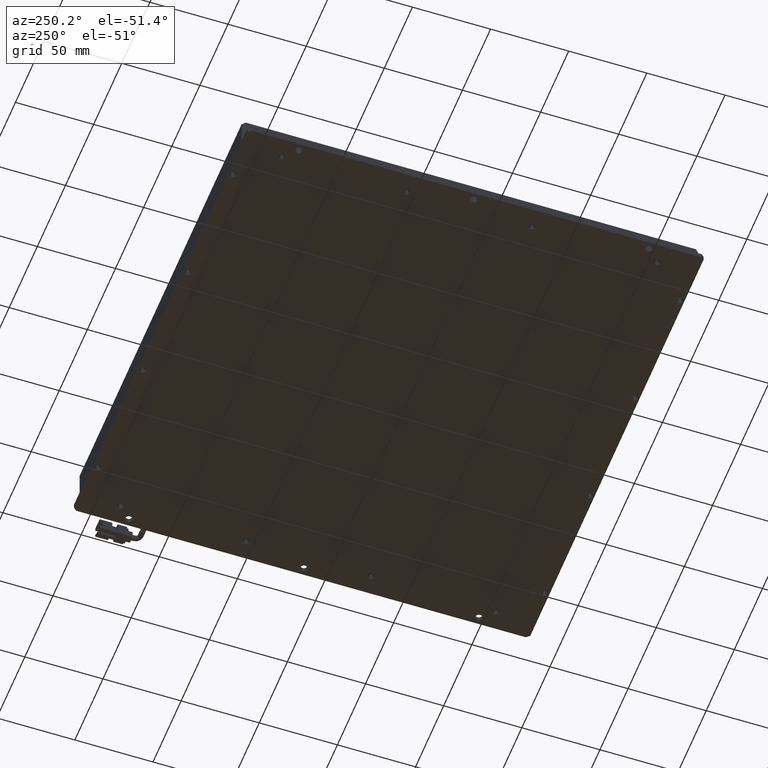
[diagram: clean part render]
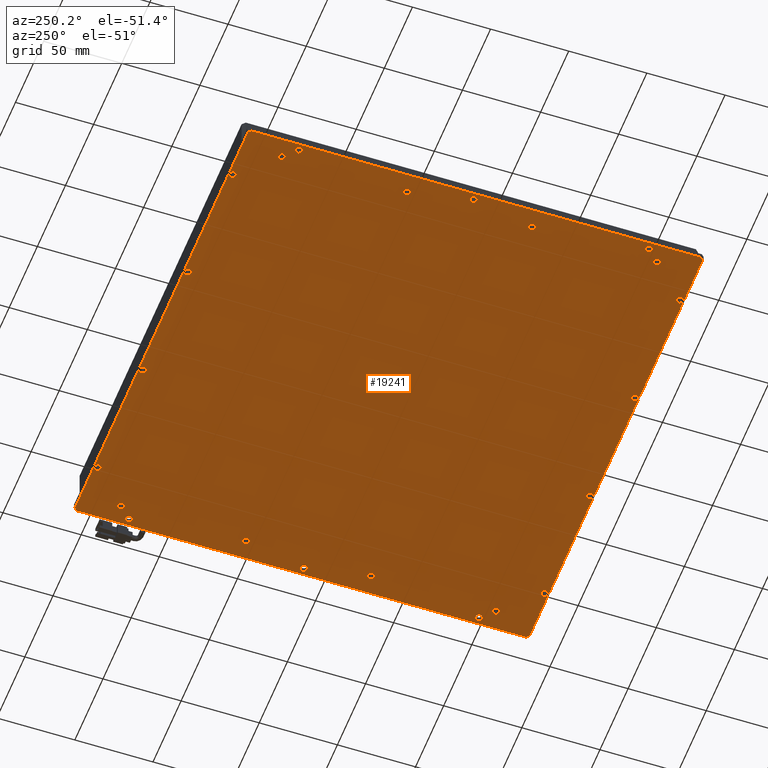
[diagram: same view with one face highlighted and labeled with its STEP entity id]
A machine part, auxiliary view. The second image highlights one B-rep face of the part: STEP entity #19241.
In plain terms, the highlighted planar face has unit normal (0, 0, -1).
Its self-contained STEP definition (entity closure, byte-faithful):
#134 = ORIENTED_EDGE ( 'NONE', *, *, #6477, .T. ) ;
#155 = EDGE_CURVE ( 'NONE', #2235, #8178, #16382, .T. ) ;
#249 = AXIS2_PLACEMENT_3D ( 'NONE', #21599, #23428, #12504 ) ;
#294 = EDGE_CURVE ( 'NONE', #3821, #12871, #12296, .T. ) ;
#377 = AXIS2_PLACEMENT_3D ( 'NONE', #21138, #11958, #6486 ) ;
#424 = CARTESIAN_POINT ( 'NONE',  ( -123.0806771263419100, -132.2301954307733600, -10.00000000002819400 ) ) ;
#431 = CARTESIAN_POINT ( 'NONE',  ( 178.1193228735605800, 53.26980456922658600, -10.00000000000637900 ) ) ;
#442 = DIRECTION ( 'NONE',  ( -1.000000000000000000, 0.0000000000000000000, -0.0000000000000000000 ) ) ;
#455 = ORIENTED_EDGE ( 'NONE', *, *, #1444, .T. ) ;
#490 = EDGE_CURVE ( 'NONE', #4103, #12072, #17775, .T. ) ;
#555 = LINE ( 'NONE', #13947, #18438 ) ;
#593 = AXIS2_PLACEMENT_3D ( 'NONE', #14674, #10911, #12950 ) ;
#599 = EDGE_CURVE ( 'NONE', #5810, #13127, #18883, .T. ) ;
#624 = CIRCLE ( 'NONE', #23363, 2.199999999957985800 ) ;
#659 = CIRCLE ( 'NONE', #7734, 2.199999999982535500 ) ;
#676 = CIRCLE ( 'NONE', #3356, 2.199999999902502200 ) ;
#704 = CARTESIAN_POINT ( 'NONE',  ( 186.7122160924716900, -132.2301954307733400, -10.00000000002817100 ) ) ;
#728 = EDGE_CURVE ( 'NONE', #5483, #8788, #5350, .T. ) ;
#732 = AXIS2_PLACEMENT_3D ( 'NONE', #4386, #8102, #13689 ) ;
#749 = ORIENTED_EDGE ( 'NONE', *, *, #19579, .T. ) ;
#758 = DIRECTION ( 'NONE',  ( 0.0000000000000000000, 1.000000000000000000, 0.0000000000000000000 ) ) ;
#857 = EDGE_CURVE ( 'NONE', #18761, #13709, #17452, .T. ) ;
#914 = AXIS2_PLACEMENT_3D ( 'NONE', #7759, #7596, #2188 ) ;
#931 = EDGE_LOOP ( 'NONE', ( #4924, #2635 ) ) ;
#984 = VERTEX_POINT ( 'NONE', #14839 ) ;
#1025 = CARTESIAN_POINT ( 'NONE',  ( 175.9193228736580700, 133.2698045692266100, -10.00000000000637900 ) ) ;
#1054 = CIRCLE ( 'NONE', #1697, 2.199999999982535500 ) ;
#1061 = ORIENTED_EDGE ( 'NONE', *, *, #490, .F. ) ;
#1082 = AXIS2_PLACEMENT_3D ( 'NONE', #12472, #5167, #18039 ) ;
#1127 = EDGE_CURVE ( 'NONE', #13709, #18761, #8755, .T. ) ;
#1181 = VECTOR ( 'NONE', #11585, 1000.000000000000000 ) ;
#1210 = AXIS2_PLACEMENT_3D ( 'NONE', #10574, #4726, #3078 ) ;
#1219 = CIRCLE ( 'NONE', #22156, 2.199999999973889500 ) ;
#1280 = CARTESIAN_POINT ( 'NONE',  ( -110.0806771263419100, 53.26980456922658600, -10.00000000008503800 ) ) ;
#1325 = DIRECTION ( 'NONE',  ( -0.0000000000000000000, -0.0000000000000000000, 1.000000000000000000 ) ) ;
#1329 = CARTESIAN_POINT ( 'NONE',  ( 155.1193228736173900, -129.7301954307733600, -10.00000000003868500 ) ) ;
#1444 = EDGE_CURVE ( 'NONE', #19294, #7411, #7014, .T. ) ;
#1556 = CARTESIAN_POINT ( 'NONE',  ( -120.8735703451554300, 158.7698045692266400, -10.00000000002819600 ) ) ;
#1582 = VERTEX_POINT ( 'NONE', #20629 ) ;
#1646 = VERTEX_POINT ( 'NONE', #17512 ) ;
#1663 = ORIENTED_EDGE ( 'NONE', *, *, #22149, .T. ) ;
#1676 = CARTESIAN_POINT ( 'NONE',  ( 188.4193228736581000, -130.5230886495869000, -10.00000000002819600 ) ) ;
#1697 = AXIS2_PLACEMENT_3D ( 'NONE', #15094, #9419, #15168 ) ;
#1737 = VERTEX_POINT ( 'NONE', #6840 ) ;
#1749 = AXIS2_PLACEMENT_3D ( 'NONE', #1025, #6434, #13957 ) ;
#1761 = DIRECTION ( 'NONE',  ( -0.0000000000000000000, -0.0000000000000000000, 1.000000000000000000 ) ) ;
#1787 = CIRCLE ( 'NONE', #1082, 2.199999999959345600 ) ;
#1827 = EDGE_LOOP ( 'NONE', ( #3089, #7174 ) ) ;
#1830 = CARTESIAN_POINT ( 'NONE',  ( 175.9193228736580700, -106.7301954307733900, -10.00000000000637900 ) ) ;
#1893 = CARTESIAN_POINT ( 'NONE',  ( 72.91932287365810300, -129.7301954307733600, -10.00000000005456300 ) ) ;
#1898 = VERTEX_POINT ( 'NONE', #19873 ) ;
#1928 = FACE_BOUND ( 'NONE', #20307, .T. ) ;
#1994 = DIRECTION ( 'NONE',  ( 1.000000000000000000, 0.0000000000000000000, 0.0000000000000000000 ) ) ;
#2062 = EDGE_CURVE ( 'NONE', #1582, #6896, #9314, .T. ) ;
#2071 = CARTESIAN_POINT ( 'NONE',  ( 173.7193228737555700, -106.7301954307733900, -10.00000000000637900 ) ) ;
#2095 = EDGE_CURVE ( 'NONE', #23561, #20505, #17082, .T. ) ;
#2147 = ORIENTED_EDGE ( 'NONE', *, *, #2775, .T. ) ;
#2162 = CARTESIAN_POINT ( 'NONE',  ( -110.0806771263419100, 133.2698045692266100, -10.00000000008503800 ) ) ;
#2188 = DIRECTION ( 'NONE',  ( -1.000000000000000000, 0.0000000000000000000, -0.0000000000000000000 ) ) ;
#2214 = CARTESIAN_POINT ( 'NONE',  ( -118.0806771263419100, -98.73019543077346300, -10.00000000002819400 ) ) ;
#2235 = VERTEX_POINT ( 'NONE', #2724 ) ;
#2260 = VERTEX_POINT ( 'NONE', #10212 ) ;
#2292 = EDGE_CURVE ( 'NONE', #19844, #2260, #22187, .T. ) ;
#2368 = AXIS2_PLACEMENT_3D ( 'NONE', #11555, #9793, #15078 ) ;
#2509 = DIRECTION ( 'NONE',  ( -0.0000000000000000000, -0.0000000000000000000, 1.000000000000000000 ) ) ;
#2561 = ORIENTED_EDGE ( 'NONE', *, *, #6343, .F. ) ;
#2635 = ORIENTED_EDGE ( 'NONE', *, *, #22994, .T. ) ;
#2674 = ORIENTED_EDGE ( 'NONE', *, *, #8116, .T. ) ;
#2724 = CARTESIAN_POINT ( 'NONE',  ( 186.1693228736580700, 13.26980456922655100, -10.00000000002819400 ) ) ;
#2766 = CIRCLE ( 'NONE', #13576, 2.200000000016189000 ) ;
#2775 = EDGE_CURVE ( 'NONE', #984, #10708, #7444, .T. ) ;
#2793 = LINE ( 'NONE', #9962, #13517 ) ;
#2809 = EDGE_LOOP ( 'NONE', ( #17720, #10478 ) ) ;
#2829 = DIRECTION ( 'NONE',  ( -1.000000000000000000, 0.0000000000000000000, 0.0000000000000000000 ) ) ;
#2858 = CARTESIAN_POINT ( 'NONE',  ( -118.0806771263419100, 13.26980456922663400, -10.00000000002819400 ) ) ;
#2959 = DIRECTION ( 'NONE',  ( -0.0000000000000000000, -0.0000000000000000000, 1.000000000000000000 ) ) ;
#3072 = EDGE_CURVE ( 'NONE', #4574, #5688, #4545, .T. ) ;
#3078 = DIRECTION ( 'NONE',  ( -1.000000000000000000, 0.0000000000000000000, 0.0000000000000000000 ) ) ;
#3080 = FACE_BOUND ( 'NONE', #17939, .T. ) ;
#3089 = ORIENTED_EDGE ( 'NONE', *, *, #20650, .T. ) ;
#3141 = CARTESIAN_POINT ( 'NONE',  ( 188.4193228736581300, 157.0626977880401100, -10.00000000002823700 ) ) ;
#3143 = DIRECTION ( 'NONE',  ( -1.000000000000000000, 0.0000000000000000000, 0.0000000000000000000 ) ) ;
#3204 = ORIENTED_EDGE ( 'NONE', *, *, #8277, .F. ) ;
#3205 = EDGE_CURVE ( 'NONE', #4327, #9000, #12891, .T. ) ;
#3207 = DIRECTION ( 'NONE',  ( -0.0000000000000000000, -0.0000000000000000000, 1.000000000000000000 ) ) ;
#3241 = VERTEX_POINT ( 'NONE', #1329 ) ;
#3250 = DIRECTION ( 'NONE',  ( -1.000000000000000000, 0.0000000000000000000, 0.0000000000000000000 ) ) ;
#3341 = CARTESIAN_POINT ( 'NONE',  ( 173.7193228737555700, 53.26980456922658600, -10.00000000000637900 ) ) ;
#3351 = CIRCLE ( 'NONE', #18728, 2.200000000016189000 ) ;
#3356 = AXIS2_PLACEMENT_3D ( 'NONE', #7326, #18452, #7408 ) ;
#3380 = CARTESIAN_POINT ( 'NONE',  ( 178.1193228735605800, -26.73019543077340300, -10.00000000000637900 ) ) ;
#3503 = ORIENTED_EDGE ( 'NONE', *, *, #6025, .F. ) ;
#3515 = DIRECTION ( 'NONE',  ( -0.0000000000000000000, -0.0000000000000000000, 1.000000000000000000 ) ) ;
#3596 = DIRECTION ( 'NONE',  ( -0.0000000000000000000, -0.0000000000000000000, 1.000000000000000000 ) ) ;
#3597 = AXIS2_PLACEMENT_3D ( 'NONE', #12825, #1761, #20449 ) ;
#3682 = LINE ( 'NONE', #20754, #11162 ) ;
#3686 = CIRCLE ( 'NONE', #19488, 2.199999999982535500 ) ;
#3748 = AXIS2_PLACEMENT_3D ( 'NONE', #18975, #8130, #20848 ) ;
#3818 = CARTESIAN_POINT ( 'NONE',  ( 152.9193228736580500, -129.7301954307733600, -10.00000000003868500 ) ) ;
#3821 = VERTEX_POINT ( 'NONE', #7033 ) ;
#3958 = CARTESIAN_POINT ( 'NONE',  ( 72.91932287365810300, 156.2698045692266400, -10.00000000005456300 ) ) ;
#4103 = VERTEX_POINT ( 'NONE', #19553 ) ;
#4240 = CIRCLE ( 'NONE', #12195, 2.249999999999974200 ) ;
#4302 = ORIENTED_EDGE ( 'NONE', *, *, #2095, .F. ) ;
#4327 = VERTEX_POINT ( 'NONE', #7475 ) ;
#4386 = CARTESIAN_POINT ( 'NONE',  ( 175.9193228736580700, -106.7301954307733900, -10.00000000000637900 ) ) ;
#4463 = CARTESIAN_POINT ( 'NONE',  ( 183.9193228736580700, -98.73019543077344900, -10.00000000002819400 ) ) ;
#4545 = CIRCLE ( 'NONE', #6130, 2.249999999999974200 ) ;
#4574 = VERTEX_POINT ( 'NONE', #5149 ) ;
#4726 = DIRECTION ( 'NONE',  ( -0.0000000000000000000, -0.0000000000000000000, 1.000000000000000000 ) ) ;
#4730 = AXIS2_PLACEMENT_3D ( 'NONE', #2162, #16523, #13570 ) ;
#4761 = EDGE_CURVE ( 'NONE', #10708, #984, #1219, .T. ) ;
#4763 = EDGE_LOOP ( 'NONE', ( #13630, #18075 ) ) ;
#4801 = DIRECTION ( 'NONE',  ( -0.0000000000000000000, -0.0000000000000000000, 1.000000000000000000 ) ) ;
#4835 = DIRECTION ( 'NONE',  ( -1.000000000000000000, 0.0000000000000000000, 0.0000000000000000000 ) ) ;
#4919 = DIRECTION ( 'NONE',  ( 0.7071067811865461300, -0.7071067811865489100, 5.748367925732748000E-015 ) ) ;
#4924 = ORIENTED_EDGE ( 'NONE', *, *, #6547, .T. ) ;
#5149 = CARTESIAN_POINT ( 'NONE',  ( 181.6693228736581000, 125.2698045692265400, -10.00000000002819400 ) ) ;
#5167 = DIRECTION ( 'NONE',  ( -0.0000000000000000000, -0.0000000000000000000, 1.000000000000000000 ) ) ;
#5210 = ORIENTED_EDGE ( 'NONE', *, *, #17430, .T. ) ;
#5235 = VECTOR ( 'NONE', #9627, 1000.000000000000000 ) ;
#5287 = EDGE_CURVE ( 'NONE', #22818, #16276, #5815, .T. ) ;
#5331 = CIRCLE ( 'NONE', #9113, 2.199999999959345600 ) ;
#5350 = CIRCLE ( 'NONE', #8517, 2.249999999999988000 ) ;
#5473 = CARTESIAN_POINT ( 'NONE',  ( -89.28067712629989200, -129.7301954307733600, -10.00000000002819400 ) ) ;
#5483 = VERTEX_POINT ( 'NONE', #6880 ) ;
#5566 = VERTEX_POINT ( 'NONE', #3341 ) ;
#5620 = CARTESIAN_POINT ( 'NONE',  ( 186.7122160924718100, 158.7698045692266400, -10.00000000002818900 ) ) ;
#5665 = CARTESIAN_POINT ( 'NONE',  ( -112.2806771263244500, -106.7301954307733900, -10.00000000008503800 ) ) ;
#5680 = CARTESIAN_POINT ( 'NONE',  ( 186.1693228736580700, 125.2698045692265400, -10.00000000002819400 ) ) ;
#5688 = VERTEX_POINT ( 'NONE', #5680 ) ;
#5810 = VERTEX_POINT ( 'NONE', #10021 ) ;
#5815 = CIRCLE ( 'NONE', #13435, 2.199999999982535500 ) ;
#5846 = DIRECTION ( 'NONE',  ( -0.0000000000000000000, -0.0000000000000000000, 1.000000000000000000 ) ) ;
#5882 = AXIS2_PLACEMENT_3D ( 'NONE', #17799, #12630, #17883 ) ;
#6025 = EDGE_CURVE ( 'NONE', #9214, #12956, #18383, .T. ) ;
#6130 = AXIS2_PLACEMENT_3D ( 'NONE', #19306, #2509, #15421 ) ;
#6140 = CARTESIAN_POINT ( 'NONE',  ( 173.7193228737555700, -26.73019543077340300, -10.00000000000637900 ) ) ;
#6143 = ORIENTED_EDGE ( 'NONE', *, *, #294, .T. ) ;
#6212 = ORIENTED_EDGE ( 'NONE', *, *, #12716, .T. ) ;
#6276 = VECTOR ( 'NONE', #12091, 1000.000000000000100 ) ;
#6291 = VERTEX_POINT ( 'NONE', #18820 ) ;
#6343 = EDGE_CURVE ( 'NONE', #12956, #19844, #3682, .T. ) ;
#6358 = VERTEX_POINT ( 'NONE', #2071 ) ;
#6407 = EDGE_CURVE ( 'NONE', #6896, #1582, #1054, .T. ) ;
#6420 = ORIENTED_EDGE ( 'NONE', *, *, #1127, .T. ) ;
#6434 = DIRECTION ( 'NONE',  ( -0.0000000000000000000, -0.0000000000000000000, 1.000000000000000000 ) ) ;
#6457 = DIRECTION ( 'NONE',  ( -0.0000000000000000000, -0.0000000000000000000, 1.000000000000000000 ) ) ;
#6477 = EDGE_CURVE ( 'NONE', #16126, #12905, #7982, .T. ) ;
#6486 = DIRECTION ( 'NONE',  ( -1.000000000000000000, 0.0000000000000000000, 0.0000000000000000000 ) ) ;
#6547 = EDGE_CURVE ( 'NONE', #16581, #13883, #8837, .T. ) ;
#6641 = DIRECTION ( 'NONE',  ( 1.000000000000000000, 0.0000000000000000000, 0.0000000000000000000 ) ) ;
#6678 = AXIS2_PLACEMENT_3D ( 'NONE', #13562, #15407, #11580 ) ;
#6823 = FACE_BOUND ( 'NONE', #9036, .T. ) ;
#6840 = CARTESIAN_POINT ( 'NONE',  ( -84.88067712638391500, 156.2698045692266400, -10.00000000002819400 ) ) ;
#6880 = CARTESIAN_POINT ( 'NONE',  ( -120.3306771263419000, 125.2698045692265900, -10.00000000002819400 ) ) ;
#6896 = VERTEX_POINT ( 'NONE', #14484 ) ;
#7014 = CIRCLE ( 'NONE', #13825, 2.249999999999974200 ) ;
#7033 = CARTESIAN_POINT ( 'NONE',  ( -112.2806771263244500, 53.26980456922658600, -10.00000000008503800 ) ) ;
#7110 = ORIENTED_EDGE ( 'NONE', *, *, #155, .T. ) ;
#7114 = CARTESIAN_POINT ( 'NONE',  ( 183.9193228736580700, 13.26980456922655100, -10.00000000002819400 ) ) ;
#7119 = FACE_BOUND ( 'NONE', #1827, .T. ) ;
#7174 = ORIENTED_EDGE ( 'NONE', *, *, #3072, .T. ) ;
#7268 = CIRCLE ( 'NONE', #22370, 2.200000000016189000 ) ;
#7326 = CARTESIAN_POINT ( 'NONE',  ( 175.9193228736580700, -26.73019543077340300, -10.00000000000637900 ) ) ;
#7408 = DIRECTION ( 'NONE',  ( -1.000000000000000000, 0.0000000000000000000, 0.0000000000000000000 ) ) ;
#7410 = FACE_BOUND ( 'NONE', #17002, .T. ) ;
#7411 = VERTEX_POINT ( 'NONE', #12385 ) ;
#7428 = DIRECTION ( 'NONE',  ( -0.0000000000000000000, -0.0000000000000000000, 1.000000000000000000 ) ) ;
#7444 = CIRCLE ( 'NONE', #14498, 2.199999999973889500 ) ;
#7475 = CARTESIAN_POINT ( 'NONE',  ( 178.1193228735605800, 133.2698045692266100, -10.00000000000637900 ) ) ;
#7500 = ORIENTED_EDGE ( 'NONE', *, *, #12264, .T. ) ;
#7596 = DIRECTION ( 'NONE',  ( 0.0000000000000000000, 0.0000000000000000000, -1.000000000000000000 ) ) ;
#7654 = CIRCLE ( 'NONE', #1210, 2.199999999973889500 ) ;
#7717 = FACE_BOUND ( 'NONE', #23319, .T. ) ;
#7734 = AXIS2_PLACEMENT_3D ( 'NONE', #19321, #10162, #2829 ) ;
#7759 = CARTESIAN_POINT ( 'NONE',  ( -123.0806771263419100, 159.2698045692266400, -10.00000000002819400 ) ) ;
#7821 = EDGE_CURVE ( 'NONE', #15233, #16263, #13679, .T. ) ;
#7837 = PLANE ( 'NONE',  #914 ) ;
#7841 = CIRCLE ( 'NONE', #8687, 2.249999999999974200 ) ;
#7891 = AXIS2_PLACEMENT_3D ( 'NONE', #17054, #20413, #13128 ) ;
#7982 = CIRCLE ( 'NONE', #7891, 2.200000000016189000 ) ;
#7986 = VERTEX_POINT ( 'NONE', #21002 ) ;
#8001 = FACE_BOUND ( 'NONE', #18087, .T. ) ;
#8035 = ORIENTED_EDGE ( 'NONE', *, *, #12685, .T. ) ;
#8102 = DIRECTION ( 'NONE',  ( -0.0000000000000000000, -0.0000000000000000000, 1.000000000000000000 ) ) ;
#8116 = EDGE_CURVE ( 'NONE', #8178, #2235, #7841, .T. ) ;
#8123 = CIRCLE ( 'NONE', #3748, 2.249999999999974200 ) ;
#8130 = DIRECTION ( 'NONE',  ( -0.0000000000000000000, -0.0000000000000000000, 1.000000000000000000 ) ) ;
#8150 = CARTESIAN_POINT ( 'NONE',  ( -115.8306771263419100, 13.26980456922663400, -10.00000000002819400 ) ) ;
#8178 = VERTEX_POINT ( 'NONE', #11063 ) ;
#8277 = EDGE_CURVE ( 'NONE', #12072, #23561, #10136, .T. ) ;
#8298 = FACE_BOUND ( 'NONE', #21095, .T. ) ;
#8315 = CARTESIAN_POINT ( 'NONE',  ( 175.9193228736580700, 53.26980456922658600, -10.00000000000637900 ) ) ;
#8426 = DIRECTION ( 'NONE',  ( -0.0000000000000000000, -0.0000000000000000000, 1.000000000000000000 ) ) ;
#8486 = ORIENTED_EDGE ( 'NONE', *, *, #2292, .F. ) ;
#8517 = AXIS2_PLACEMENT_3D ( 'NONE', #12967, #16515, #1994 ) ;
#8687 = AXIS2_PLACEMENT_3D ( 'NONE', #7114, #20001, #9076 ) ;
#8755 = CIRCLE ( 'NONE', #15371, 2.249999999999988000 ) ;
#8788 = VERTEX_POINT ( 'NONE', #14636 ) ;
#8837 = CIRCLE ( 'NONE', #17004, 2.199999999902502200 ) ;
#8947 = DIRECTION ( 'NONE',  ( -0.0000000000000000000, -0.0000000000000000000, 1.000000000000000000 ) ) ;
#9000 = VERTEX_POINT ( 'NONE', #12435 ) ;
#9036 = EDGE_LOOP ( 'NONE', ( #11157, #13990 ) ) ;
#9076 = DIRECTION ( 'NONE',  ( 1.000000000000000000, 0.0000000000000000000, 0.0000000000000000000 ) ) ;
#9091 = DIRECTION ( 'NONE',  ( -1.000000000000000000, 0.0000000000000000000, 0.0000000000000000000 ) ) ;
#9113 = AXIS2_PLACEMENT_3D ( 'NONE', #3818, #7428, #18547 ) ;
#9157 = FACE_BOUND ( 'NONE', #14580, .T. ) ;
#9214 = VERTEX_POINT ( 'NONE', #14755 ) ;
#9268 = CARTESIAN_POINT ( 'NONE',  ( 186.7122160924717500, -132.2301954307733600, -10.00000000002818700 ) ) ;
#9279 = DIRECTION ( 'NONE',  ( -1.000000000000000000, 0.0000000000000000000, 0.0000000000000000000 ) ) ;
#9314 = CIRCLE ( 'NONE', #4730, 2.199999999982535500 ) ;
#9325 = VERTEX_POINT ( 'NONE', #431 ) ;
#9419 = DIRECTION ( 'NONE',  ( -0.0000000000000000000, -0.0000000000000000000, 1.000000000000000000 ) ) ;
#9538 = DIRECTION ( 'NONE',  ( -0.0000000000000000000, -0.0000000000000000000, 1.000000000000000000 ) ) ;
#9575 = EDGE_LOOP ( 'NONE', ( #18353, #18423 ) ) ;
#9627 = DIRECTION ( 'NONE',  ( 1.000000000000000000, 0.0000000000000000000, 0.0000000000000000000 ) ) ;
#9643 = CARTESIAN_POINT ( 'NONE',  ( -9.280677126315806500, 156.2698045692266400, -9.999999999971350900 ) ) ;
#9688 = EDGE_CURVE ( 'NONE', #9325, #5566, #20612, .T. ) ;
#9793 = DIRECTION ( 'NONE',  ( -0.0000000000000000000, -0.0000000000000000000, 1.000000000000000000 ) ) ;
#9865 = AXIS2_PLACEMENT_3D ( 'NONE', #10333, #12255, #23182 ) ;
#9962 = CARTESIAN_POINT ( 'NONE',  ( -122.5806771263419400, 159.2698045692266400, -10.00000000002819400 ) ) ;
#9979 = EDGE_CURVE ( 'NONE', #5566, #9325, #17178, .T. ) ;
#10021 = CARTESIAN_POINT ( 'NONE',  ( -4.880677126368027500, 156.2698045692266400, -9.999999999971350900 ) ) ;
#10056 = CARTESIAN_POINT ( 'NONE',  ( -118.0806771263419100, 125.2698045692265900, -10.00000000002819400 ) ) ;
#10128 = CARTESIAN_POINT ( 'NONE',  ( -110.0806771263419100, -26.73019543077340300, -10.00000000008503800 ) ) ;
#10136 = LINE ( 'NONE', #424, #5235 ) ;
#10138 = DIRECTION ( 'NONE',  ( 1.000000000000000000, 0.0000000000000000000, 0.0000000000000000000 ) ) ;
#10141 = CARTESIAN_POINT ( 'NONE',  ( -120.8735703451554400, 158.7698045692266400, -10.00000000002819800 ) ) ;
#10162 = DIRECTION ( 'NONE',  ( -0.0000000000000000000, -0.0000000000000000000, 1.000000000000000000 ) ) ;
#10212 = CARTESIAN_POINT ( 'NONE',  ( -122.5806771263419400, 157.0626977880401100, -10.00000000002819800 ) ) ;
#10225 = CARTESIAN_POINT ( 'NONE',  ( -122.5806771263419100, -130.5230886495868700, -10.00000000002819400 ) ) ;
#10228 = ORIENTED_EDGE ( 'NONE', *, *, #20005, .T. ) ;
#10300 = FACE_BOUND ( 'NONE', #931, .T. ) ;
#10333 = CARTESIAN_POINT ( 'NONE',  ( 152.9193228736580500, 156.2698045692266400, -10.00000000003868500 ) ) ;
#10362 = EDGE_LOOP ( 'NONE', ( #2561, #3503, #16166, #4302, #3204, #1061, #23662, #8486 ) ) ;
#10367 = CARTESIAN_POINT ( 'NONE',  ( 72.91932287365810300, 156.2698045692266400, -10.00000000005456300 ) ) ;
#10395 = DIRECTION ( 'NONE',  ( -0.0000000000000000000, -0.0000000000000000000, 1.000000000000000000 ) ) ;
#10404 = CARTESIAN_POINT ( 'NONE',  ( -120.3306771263419000, 13.26980456922663400, -10.00000000002819400 ) ) ;
#10443 = AXIS2_PLACEMENT_3D ( 'NONE', #1830, #8947, #23903 ) ;
#10478 = ORIENTED_EDGE ( 'NONE', *, *, #728, .T. ) ;
#10486 = CARTESIAN_POINT ( 'NONE',  ( 70.71932287364191400, -129.7301954307733600, -10.00000000005456300 ) ) ;
#10574 = CARTESIAN_POINT ( 'NONE',  ( -7.080677126341916100, 156.2698045692266400, -9.999999999971350900 ) ) ;
#10617 = EDGE_CURVE ( 'NONE', #16129, #16532, #21744, .T. ) ;
#10646 = CARTESIAN_POINT ( 'NONE',  ( -107.8806771263593700, -26.73019543077340300, -10.00000000008503800 ) ) ;
#10708 = VERTEX_POINT ( 'NONE', #23633 ) ;
#10799 = EDGE_LOOP ( 'NONE', ( #7500, #5210 ) ) ;
#10867 = FACE_BOUND ( 'NONE', #10799, .T. ) ;
#10911 = DIRECTION ( 'NONE',  ( -0.0000000000000000000, -0.0000000000000000000, 1.000000000000000000 ) ) ;
#11063 = CARTESIAN_POINT ( 'NONE',  ( 181.6693228736581000, 13.26980456922655100, -10.00000000002819400 ) ) ;
#11089 = EDGE_CURVE ( 'NONE', #16532, #16129, #13961, .T. ) ;
#11113 = CARTESIAN_POINT ( 'NONE',  ( 178.1193228735605800, -106.7301954307733900, -10.00000000000637900 ) ) ;
#11157 = ORIENTED_EDGE ( 'NONE', *, *, #2062, .T. ) ;
#11162 = VECTOR ( 'NONE', #442, 1000.000000000000000 ) ;
#11196 = DIRECTION ( 'NONE',  ( -0.0000000000000000000, -0.0000000000000000000, 1.000000000000000000 ) ) ;
#11315 = CARTESIAN_POINT ( 'NONE',  ( -115.8306771263419100, -98.73019543077346300, -10.00000000002819400 ) ) ;
#11455 = EDGE_LOOP ( 'NONE', ( #8035, #10228 ) ) ;
#11555 = CARTESIAN_POINT ( 'NONE',  ( -110.0806771263419100, -26.73019543077340300, -10.00000000008503800 ) ) ;
#11580 = DIRECTION ( 'NONE',  ( -1.000000000000000000, 0.0000000000000000000, 0.0000000000000000000 ) ) ;
#11585 = DIRECTION ( 'NONE',  ( 0.7071067811865383600, 0.7071067811865566800, -1.149673585146626000E-014 ) ) ;
#11661 = EDGE_LOOP ( 'NONE', ( #455, #15170 ) ) ;
#11697 = CARTESIAN_POINT ( 'NONE',  ( -110.0806771263419100, 53.26980456922658600, -10.00000000008503800 ) ) ;
#11812 = DIRECTION ( 'NONE',  ( -1.000000000000000000, 0.0000000000000000000, 0.0000000000000000000 ) ) ;
#11833 = AXIS2_PLACEMENT_3D ( 'NONE', #15954, #3207, #4835 ) ;
#11855 = DIRECTION ( 'NONE',  ( -0.0000000000000000000, -0.0000000000000000000, 1.000000000000000000 ) ) ;
#11863 = VERTEX_POINT ( 'NONE', #23850 ) ;
#11900 = ORIENTED_EDGE ( 'NONE', *, *, #3205, .T. ) ;
#11958 = DIRECTION ( 'NONE',  ( -0.0000000000000000000, -0.0000000000000000000, 1.000000000000000000 ) ) ;
#12019 = AXIS2_PLACEMENT_3D ( 'NONE', #2858, #4801, #6641 ) ;
#12034 = FACE_BOUND ( 'NONE', #22736, .T. ) ;
#12043 = EDGE_LOOP ( 'NONE', ( #18459, #21181 ) ) ;
#12051 = DIRECTION ( 'NONE',  ( -0.0000000000000000000, -1.000000000000000000, -0.0000000000000000000 ) ) ;
#12072 = VERTEX_POINT ( 'NONE', #23093 ) ;
#12091 = DIRECTION ( 'NONE',  ( -0.7071067811865360300, 0.7071067811865589000, 1.724510377719932900E-014 ) ) ;
#12195 = AXIS2_PLACEMENT_3D ( 'NONE', #4463, #17295, #17451 ) ;
#12255 = DIRECTION ( 'NONE',  ( -0.0000000000000000000, -0.0000000000000000000, 1.000000000000000000 ) ) ;
#12264 = EDGE_CURVE ( 'NONE', #7986, #1737, #18115, .T. ) ;
#12296 = CIRCLE ( 'NONE', #21910, 2.199999999982535500 ) ;
#12297 = FACE_BOUND ( 'NONE', #19134, .T. ) ;
#12323 = DIRECTION ( 'NONE',  ( -0.0000000000000000000, -0.0000000000000000000, 1.000000000000000000 ) ) ;
#12324 = CARTESIAN_POINT ( 'NONE',  ( -112.2806771263244500, -26.73019543077340300, -10.00000000008503800 ) ) ;
#12385 = CARTESIAN_POINT ( 'NONE',  ( 181.6693228736581000, -98.73019543077344900, -10.00000000002819400 ) ) ;
#12435 = CARTESIAN_POINT ( 'NONE',  ( 173.7193228737555700, 133.2698045692266100, -10.00000000000637900 ) ) ;
#12447 = AXIS2_PLACEMENT_3D ( 'NONE', #10056, #8426, #23067 ) ;
#12472 = CARTESIAN_POINT ( 'NONE',  ( 152.9193228736580500, 156.2698045692266400, -10.00000000003868500 ) ) ;
#12504 = DIRECTION ( 'NONE',  ( -1.000000000000000000, 0.0000000000000000000, 0.0000000000000000000 ) ) ;
#12607 = EDGE_CURVE ( 'NONE', #9000, #4327, #18624, .T. ) ;
#12617 = DIRECTION ( 'NONE',  ( 1.000000000000000000, 0.0000000000000000000, 0.0000000000000000000 ) ) ;
#12630 = DIRECTION ( 'NONE',  ( -0.0000000000000000000, -0.0000000000000000000, 1.000000000000000000 ) ) ;
#12685 = EDGE_CURVE ( 'NONE', #11863, #3241, #16346, .T. ) ;
#12689 = AXIS2_PLACEMENT_3D ( 'NONE', #18105, #19848, #10138 ) ;
#12716 = EDGE_CURVE ( 'NONE', #21513, #1898, #3351, .T. ) ;
#12825 = CARTESIAN_POINT ( 'NONE',  ( -87.08067712634191100, 156.2698045692266400, -10.00000000002819400 ) ) ;
#12859 = ORIENTED_EDGE ( 'NONE', *, *, #16861, .T. ) ;
#12871 = VERTEX_POINT ( 'NONE', #23714 ) ;
#12891 = CIRCLE ( 'NONE', #11833, 2.199999999902502200 ) ;
#12905 = VERTEX_POINT ( 'NONE', #15086 ) ;
#12950 = DIRECTION ( 'NONE',  ( -1.000000000000000000, 0.0000000000000000000, 0.0000000000000000000 ) ) ;
#12956 = VERTEX_POINT ( 'NONE', #5620 ) ;
#12967 = CARTESIAN_POINT ( 'NONE',  ( -118.0806771263419100, 125.2698045692265900, -10.00000000002819400 ) ) ;
#13127 = VERTEX_POINT ( 'NONE', #9643 ) ;
#13128 = DIRECTION ( 'NONE',  ( -1.000000000000000000, 0.0000000000000000000, 0.0000000000000000000 ) ) ;
#13176 = EDGE_CURVE ( 'NONE', #16263, #15233, #21638, .T. ) ;
#13435 = AXIS2_PLACEMENT_3D ( 'NONE', #10128, #17323, #11812 ) ;
#13454 = CARTESIAN_POINT ( 'NONE',  ( 175.9193228736580700, -26.73019543077340300, -10.00000000000637900 ) ) ;
#13461 = DIRECTION ( 'NONE',  ( -0.0000000000000000000, -0.0000000000000000000, 1.000000000000000000 ) ) ;
#13475 = AXIS2_PLACEMENT_3D ( 'NONE', #15905, #11855, #13911 ) ;
#13514 = ORIENTED_EDGE ( 'NONE', *, *, #4761, .T. ) ;
#13517 = VECTOR ( 'NONE', #758, 1000.000000000000000 ) ;
#13562 = CARTESIAN_POINT ( 'NONE',  ( -87.08067712634191100, -129.7301954307733600, -10.00000000002819400 ) ) ;
#13566 = CARTESIAN_POINT ( 'NONE',  ( -107.8806771263593700, -106.7301954307733900, -10.00000000008503800 ) ) ;
#13570 = DIRECTION ( 'NONE',  ( -1.000000000000000000, 0.0000000000000000000, 0.0000000000000000000 ) ) ;
#13576 = AXIS2_PLACEMENT_3D ( 'NONE', #3958, #20276, #9279 ) ;
#13630 = ORIENTED_EDGE ( 'NONE', *, *, #14503, .T. ) ;
#13661 = ORIENTED_EDGE ( 'NONE', *, *, #19784, .T. ) ;
#13669 = CARTESIAN_POINT ( 'NONE',  ( -120.3306771263419000, -98.73019543077346300, -10.00000000002819400 ) ) ;
#13679 = CIRCLE ( 'NONE', #6678, 2.199999999957985800 ) ;
#13689 = DIRECTION ( 'NONE',  ( -1.000000000000000000, 0.0000000000000000000, 0.0000000000000000000 ) ) ;
#13704 = AXIS2_PLACEMENT_3D ( 'NONE', #17792, #1325, #19452 ) ;
#13709 = VERTEX_POINT ( 'NONE', #13669 ) ;
#13825 = AXIS2_PLACEMENT_3D ( 'NONE', #16870, #9538, #22526 ) ;
#13883 = VERTEX_POINT ( 'NONE', #3380 ) ;
#13911 = DIRECTION ( 'NONE',  ( 1.000000000000000000, 0.0000000000000000000, 0.0000000000000000000 ) ) ;
#13947 = CARTESIAN_POINT ( 'NONE',  ( 188.4193228736581000, 159.2698045692266400, -10.00000000002819400 ) ) ;
#13957 = DIRECTION ( 'NONE',  ( -1.000000000000000000, 0.0000000000000000000, 0.0000000000000000000 ) ) ;
#13961 = CIRCLE ( 'NONE', #12019, 2.249999999999988000 ) ;
#13990 = ORIENTED_EDGE ( 'NONE', *, *, #6407, .T. ) ;
#14157 = ORIENTED_EDGE ( 'NONE', *, *, #20936, .T. ) ;
#14209 = EDGE_CURVE ( 'NONE', #4103, #2260, #2793, .T. ) ;
#14362 = EDGE_CURVE ( 'NONE', #14713, #6358, #18049, .T. ) ;
#14436 = CARTESIAN_POINT ( 'NONE',  ( -118.0806771263419100, 13.26980456922663400, -10.00000000002819400 ) ) ;
#14453 = EDGE_LOOP ( 'NONE', ( #6143, #20933 ) ) ;
#14484 = CARTESIAN_POINT ( 'NONE',  ( -107.8806771263593700, 133.2698045692266100, -10.00000000008503800 ) ) ;
#14498 = AXIS2_PLACEMENT_3D ( 'NONE', #16605, #11196, #18529 ) ;
#14503 = EDGE_CURVE ( 'NONE', #1646, #6291, #22612, .T. ) ;
#14571 = ORIENTED_EDGE ( 'NONE', *, *, #599, .T. ) ;
#14580 = EDGE_LOOP ( 'NONE', ( #1663, #6212 ) ) ;
#14636 = CARTESIAN_POINT ( 'NONE',  ( -115.8306771263419100, 125.2698045692265900, -10.00000000002819400 ) ) ;
#14674 = CARTESIAN_POINT ( 'NONE',  ( -110.0806771263419100, -106.7301954307733900, -10.00000000008503800 ) ) ;
#14713 = VERTEX_POINT ( 'NONE', #11113 ) ;
#14716 = ORIENTED_EDGE ( 'NONE', *, *, #857, .T. ) ;
#14755 = CARTESIAN_POINT ( 'NONE',  ( 188.4193228736581000, 157.0626977880402800, -10.00000000002820000 ) ) ;
#14839 = CARTESIAN_POINT ( 'NONE',  ( -9.280677126315806500, -129.7301954307733600, -9.999999999971350900 ) ) ;
#14927 = VECTOR ( 'NONE', #4919, 1000.000000000000100 ) ;
#15078 = DIRECTION ( 'NONE',  ( -1.000000000000000000, 0.0000000000000000000, 0.0000000000000000000 ) ) ;
#15086 = CARTESIAN_POINT ( 'NONE',  ( 75.11932287367429200, -129.7301954307733600, -10.00000000005456300 ) ) ;
#15094 = CARTESIAN_POINT ( 'NONE',  ( -110.0806771263419100, 133.2698045692266100, -10.00000000008503800 ) ) ;
#15140 = CARTESIAN_POINT ( 'NONE',  ( 186.1693228736580700, -98.73019543077344900, -10.00000000002819400 ) ) ;
#15162 = DIRECTION ( 'NONE',  ( 1.000000000000000000, 0.0000000000000000000, 0.0000000000000000000 ) ) ;
#15168 = DIRECTION ( 'NONE',  ( -1.000000000000000000, 0.0000000000000000000, 0.0000000000000000000 ) ) ;
#15170 = ORIENTED_EDGE ( 'NONE', *, *, #16019, .T. ) ;
#15226 = DIRECTION ( 'NONE',  ( -1.000000000000000000, 0.0000000000000000000, 0.0000000000000000000 ) ) ;
#15233 = VERTEX_POINT ( 'NONE', #5473 ) ;
#15246 = FACE_BOUND ( 'NONE', #23264, .T. ) ;
#15371 = AXIS2_PLACEMENT_3D ( 'NONE', #2214, #13461, #15162 ) ;
#15407 = DIRECTION ( 'NONE',  ( -0.0000000000000000000, -0.0000000000000000000, 1.000000000000000000 ) ) ;
#15421 = DIRECTION ( 'NONE',  ( 1.000000000000000000, 0.0000000000000000000, 0.0000000000000000000 ) ) ;
#15457 = AXIS2_PLACEMENT_3D ( 'NONE', #14436, #16501, #12617 ) ;
#15905 = CARTESIAN_POINT ( 'NONE',  ( 183.9193228736580700, 13.26980456922655100, -10.00000000002819400 ) ) ;
#15954 = CARTESIAN_POINT ( 'NONE',  ( 175.9193228736580700, 133.2698045692266100, -10.00000000000637900 ) ) ;
#16019 = EDGE_CURVE ( 'NONE', #7411, #19294, #4240, .T. ) ;
#16126 = VERTEX_POINT ( 'NONE', #10486 ) ;
#16129 = VERTEX_POINT ( 'NONE', #10404 ) ;
#16146 = CARTESIAN_POINT ( 'NONE',  ( -84.88067712638391500, -129.7301954307733600, -10.00000000002819400 ) ) ;
#16166 = ORIENTED_EDGE ( 'NONE', *, *, #18444, .T. ) ;
#16263 = VERTEX_POINT ( 'NONE', #16146 ) ;
#16276 = VERTEX_POINT ( 'NONE', #10646 ) ;
#16346 = CIRCLE ( 'NONE', #13704, 2.199999999959345600 ) ;
#16382 = CIRCLE ( 'NONE', #13475, 2.249999999999974200 ) ;
#16501 = DIRECTION ( 'NONE',  ( -0.0000000000000000000, -0.0000000000000000000, 1.000000000000000000 ) ) ;
#16515 = DIRECTION ( 'NONE',  ( -0.0000000000000000000, -0.0000000000000000000, 1.000000000000000000 ) ) ;
#16523 = DIRECTION ( 'NONE',  ( -0.0000000000000000000, -0.0000000000000000000, 1.000000000000000000 ) ) ;
#16532 = VERTEX_POINT ( 'NONE', #8150 ) ;
#16581 = VERTEX_POINT ( 'NONE', #6140 ) ;
#16605 = CARTESIAN_POINT ( 'NONE',  ( -7.080677126341916100, -129.7301954307733600, -9.999999999971350900 ) ) ;
#16653 = ORIENTED_EDGE ( 'NONE', *, *, #12607, .T. ) ;
#16821 = EDGE_LOOP ( 'NONE', ( #13661, #14571 ) ) ;
#16861 = EDGE_CURVE ( 'NONE', #16276, #22818, #18845, .T. ) ;
#16870 = CARTESIAN_POINT ( 'NONE',  ( 183.9193228736580700, -98.73019543077344900, -10.00000000002819400 ) ) ;
#16952 = FACE_BOUND ( 'NONE', #14453, .T. ) ;
#17002 = EDGE_LOOP ( 'NONE', ( #134, #14157 ) ) ;
#17004 = AXIS2_PLACEMENT_3D ( 'NONE', #13454, #5846, #15226 ) ;
#17054 = CARTESIAN_POINT ( 'NONE',  ( 72.91932287365810300, -129.7301954307733600, -10.00000000005456300 ) ) ;
#17082 = LINE ( 'NONE', #704, #1181 ) ;
#17178 = CIRCLE ( 'NONE', #19926, 2.199999999902502200 ) ;
#17240 = FACE_BOUND ( 'NONE', #2809, .T. ) ;
#17295 = DIRECTION ( 'NONE',  ( -0.0000000000000000000, -0.0000000000000000000, 1.000000000000000000 ) ) ;
#17323 = DIRECTION ( 'NONE',  ( -0.0000000000000000000, -0.0000000000000000000, 1.000000000000000000 ) ) ;
#17363 = DIRECTION ( 'NONE',  ( -1.000000000000000000, 0.0000000000000000000, 0.0000000000000000000 ) ) ;
#17430 = EDGE_CURVE ( 'NONE', #1737, #7986, #624, .T. ) ;
#17451 = DIRECTION ( 'NONE',  ( 1.000000000000000000, 0.0000000000000000000, 0.0000000000000000000 ) ) ;
#17452 = CIRCLE ( 'NONE', #12689, 2.249999999999988000 ) ;
#17512 = CARTESIAN_POINT ( 'NONE',  ( 150.7193228736987000, 156.2698045692266400, -10.00000000003868500 ) ) ;
#17514 = VERTEX_POINT ( 'NONE', #5665 ) ;
#17720 = ORIENTED_EDGE ( 'NONE', *, *, #18434, .T. ) ;
#17775 = LINE ( 'NONE', #10225, #14927 ) ;
#17792 = CARTESIAN_POINT ( 'NONE',  ( 152.9193228736580500, -129.7301954307733600, -10.00000000003868500 ) ) ;
#17797 = FACE_BOUND ( 'NONE', #4763, .T. ) ;
#17799 = CARTESIAN_POINT ( 'NONE',  ( -7.080677126341916100, 156.2698045692266400, -9.999999999971350900 ) ) ;
#17883 = DIRECTION ( 'NONE',  ( -1.000000000000000000, 0.0000000000000000000, 0.0000000000000000000 ) ) ;
#17939 = EDGE_LOOP ( 'NONE', ( #21384, #23557 ) ) ;
#18023 = EDGE_CURVE ( 'NONE', #6358, #14713, #22441, .T. ) ;
#18039 = DIRECTION ( 'NONE',  ( -1.000000000000000000, 0.0000000000000000000, 0.0000000000000000000 ) ) ;
#18049 = CIRCLE ( 'NONE', #732, 2.199999999902502200 ) ;
#18075 = ORIENTED_EDGE ( 'NONE', *, *, #20405, .T. ) ;
#18087 = EDGE_LOOP ( 'NONE', ( #7110, #2674 ) ) ;
#18105 = CARTESIAN_POINT ( 'NONE',  ( -118.0806771263419100, -98.73019543077346300, -10.00000000002819400 ) ) ;
#18109 = CARTESIAN_POINT ( 'NONE',  ( -7.080677126341916100, -129.7301954307733600, -9.999999999971350900 ) ) ;
#18115 = CIRCLE ( 'NONE', #3597, 2.199999999957985800 ) ;
#18332 = VERTEX_POINT ( 'NONE', #13566 ) ;
#18353 = ORIENTED_EDGE ( 'NONE', *, *, #11089, .T. ) ;
#18383 = LINE ( 'NONE', #3141, #6276 ) ;
#18423 = ORIENTED_EDGE ( 'NONE', *, *, #10617, .T. ) ;
#18434 = EDGE_CURVE ( 'NONE', #8788, #5483, #23298, .T. ) ;
#18438 = VECTOR ( 'NONE', #12051, 1000.000000000000000 ) ;
#18444 = EDGE_CURVE ( 'NONE', #9214, #20505, #555, .T. ) ;
#18452 = DIRECTION ( 'NONE',  ( -0.0000000000000000000, -0.0000000000000000000, 1.000000000000000000 ) ) ;
#18459 = ORIENTED_EDGE ( 'NONE', *, *, #7821, .T. ) ;
#18529 = DIRECTION ( 'NONE',  ( -1.000000000000000000, 0.0000000000000000000, 0.0000000000000000000 ) ) ;
#18547 = DIRECTION ( 'NONE',  ( -1.000000000000000000, 0.0000000000000000000, 0.0000000000000000000 ) ) ;
#18624 = CIRCLE ( 'NONE', #1749, 2.199999999902502200 ) ;
#18703 = ORIENTED_EDGE ( 'NONE', *, *, #5287, .T. ) ;
#18728 = AXIS2_PLACEMENT_3D ( 'NONE', #10367, #2959, #21553 ) ;
#18761 = VERTEX_POINT ( 'NONE', #11315 ) ;
#18820 = CARTESIAN_POINT ( 'NONE',  ( 155.1193228736173900, 156.2698045692266400, -10.00000000003868500 ) ) ;
#18845 = CIRCLE ( 'NONE', #2368, 2.199999999982535500 ) ;
#18883 = CIRCLE ( 'NONE', #5882, 2.199999999973889500 ) ;
#18974 = ORIENTED_EDGE ( 'NONE', *, *, #18023, .T. ) ;
#18975 = CARTESIAN_POINT ( 'NONE',  ( 183.9193228736580700, 125.2698045692265400, -10.00000000002819400 ) ) ;
#19134 = EDGE_LOOP ( 'NONE', ( #749, #21404 ) ) ;
#19241 = ADVANCED_FACE ( 'NONE', ( #23230, #8001, #7119, #15246, #22657, #17240, #6823, #16952, #8298, #12297, #12034, #3080, #10300, #7717, #20668, #1928, #7410, #20962, #10867, #21252, #9157, #17797, #21820 ), #7837, .T. ) ;
#19294 = VERTEX_POINT ( 'NONE', #15140 ) ;
#19306 = CARTESIAN_POINT ( 'NONE',  ( 183.9193228736580700, 125.2698045692265400, -10.00000000002819400 ) ) ;
#19321 = CARTESIAN_POINT ( 'NONE',  ( -110.0806771263419100, -106.7301954307733900, -10.00000000008503800 ) ) ;
#19328 = DIRECTION ( 'NONE',  ( -1.000000000000000000, 0.0000000000000000000, 0.0000000000000000000 ) ) ;
#19452 = DIRECTION ( 'NONE',  ( -1.000000000000000000, 0.0000000000000000000, 0.0000000000000000000 ) ) ;
#19488 = AXIS2_PLACEMENT_3D ( 'NONE', #11697, #6457, #17363 ) ;
#19553 = CARTESIAN_POINT ( 'NONE',  ( -122.5806771263419300, -130.5230886495868400, -10.00000000002819400 ) ) ;
#19579 = EDGE_CURVE ( 'NONE', #17514, #18332, #22341, .T. ) ;
#19608 = DIRECTION ( 'NONE',  ( -0.7071067811865439100, -0.7071067811865512400, -4.625639815238161800E-015 ) ) ;
#19784 = EDGE_CURVE ( 'NONE', #13127, #5810, #7654, .T. ) ;
#19844 = VERTEX_POINT ( 'NONE', #1556 ) ;
#19848 = DIRECTION ( 'NONE',  ( -0.0000000000000000000, -0.0000000000000000000, 1.000000000000000000 ) ) ;
#19873 = CARTESIAN_POINT ( 'NONE',  ( 70.71932287364191400, 156.2698045692266400, -10.00000000005456300 ) ) ;
#19926 = AXIS2_PLACEMENT_3D ( 'NONE', #8315, #10395, #19328 ) ;
#20001 = DIRECTION ( 'NONE',  ( -0.0000000000000000000, -0.0000000000000000000, 1.000000000000000000 ) ) ;
#20005 = EDGE_CURVE ( 'NONE', #3241, #11863, #5331, .T. ) ;
#20142 = CARTESIAN_POINT ( 'NONE',  ( -87.08067712634191100, 156.2698045692266400, -10.00000000002819400 ) ) ;
#20175 = DIRECTION ( 'NONE',  ( -1.000000000000000000, 0.0000000000000000000, 0.0000000000000000000 ) ) ;
#20276 = DIRECTION ( 'NONE',  ( -0.0000000000000000000, -0.0000000000000000000, 1.000000000000000000 ) ) ;
#20294 = EDGE_CURVE ( 'NONE', #18332, #17514, #659, .T. ) ;
#20307 = EDGE_LOOP ( 'NONE', ( #2147, #13514 ) ) ;
#20405 = EDGE_CURVE ( 'NONE', #6291, #1646, #1787, .T. ) ;
#20413 = DIRECTION ( 'NONE',  ( -0.0000000000000000000, -0.0000000000000000000, 1.000000000000000000 ) ) ;
#20449 = DIRECTION ( 'NONE',  ( -1.000000000000000000, 0.0000000000000000000, 0.0000000000000000000 ) ) ;
#20505 = VERTEX_POINT ( 'NONE', #1676 ) ;
#20612 = CIRCLE ( 'NONE', #249, 2.199999999902502200 ) ;
#20629 = CARTESIAN_POINT ( 'NONE',  ( -112.2806771263244500, 133.2698045692266100, -10.00000000008503800 ) ) ;
#20650 = EDGE_CURVE ( 'NONE', #5688, #4574, #8123, .T. ) ;
#20668 = FACE_BOUND ( 'NONE', #12043, .T. ) ;
#20754 = CARTESIAN_POINT ( 'NONE',  ( -123.0806771263419100, 158.7698045692266400, -10.00000000002819400 ) ) ;
#20848 = DIRECTION ( 'NONE',  ( 1.000000000000000000, 0.0000000000000000000, 0.0000000000000000000 ) ) ;
#20933 = ORIENTED_EDGE ( 'NONE', *, *, #21770, .T. ) ;
#20936 = EDGE_CURVE ( 'NONE', #12905, #16126, #7268, .T. ) ;
#20962 = FACE_BOUND ( 'NONE', #11455, .T. ) ;
#21002 = CARTESIAN_POINT ( 'NONE',  ( -89.28067712629989200, 156.2698045692266400, -10.00000000002819400 ) ) ;
#21095 = EDGE_LOOP ( 'NONE', ( #18703, #12859 ) ) ;
#21138 = CARTESIAN_POINT ( 'NONE',  ( -87.08067712634191100, -129.7301954307733600, -10.00000000002819400 ) ) ;
#21181 = ORIENTED_EDGE ( 'NONE', *, *, #13176, .T. ) ;
#21252 = FACE_BOUND ( 'NONE', #16821, .T. ) ;
#21384 = ORIENTED_EDGE ( 'NONE', *, *, #9979, .T. ) ;
#21404 = ORIENTED_EDGE ( 'NONE', *, *, #20294, .T. ) ;
#21513 = VERTEX_POINT ( 'NONE', #21998 ) ;
#21553 = DIRECTION ( 'NONE',  ( -1.000000000000000000, 0.0000000000000000000, 0.0000000000000000000 ) ) ;
#21599 = CARTESIAN_POINT ( 'NONE',  ( 175.9193228736580700, 53.26980456922658600, -10.00000000000637900 ) ) ;
#21602 = DIRECTION ( 'NONE',  ( -0.0000000000000000000, -0.0000000000000000000, 1.000000000000000000 ) ) ;
#21638 = CIRCLE ( 'NONE', #377, 2.199999999957985800 ) ;
#21744 = CIRCLE ( 'NONE', #15457, 2.249999999999988000 ) ;
#21770 = EDGE_CURVE ( 'NONE', #12871, #3821, #3686, .T. ) ;
#21820 = FACE_OUTER_BOUND ( 'NONE', #10362, .T. ) ;
#21910 = AXIS2_PLACEMENT_3D ( 'NONE', #1280, #12323, #3143 ) ;
#21918 = VECTOR ( 'NONE', #19608, 1000.000000000000000 ) ;
#21998 = CARTESIAN_POINT ( 'NONE',  ( 75.11932287367429200, 156.2698045692266400, -10.00000000005456300 ) ) ;
#22149 = EDGE_CURVE ( 'NONE', #1898, #21513, #2766, .T. ) ;
#22156 = AXIS2_PLACEMENT_3D ( 'NONE', #18109, #3515, #20175 ) ;
#22187 = LINE ( 'NONE', #10141, #21918 ) ;
#22341 = CIRCLE ( 'NONE', #593, 2.199999999982535500 ) ;
#22370 = AXIS2_PLACEMENT_3D ( 'NONE', #1893, #3596, #9091 ) ;
#22441 = CIRCLE ( 'NONE', #10443, 2.199999999902502200 ) ;
#22526 = DIRECTION ( 'NONE',  ( 1.000000000000000000, 0.0000000000000000000, 0.0000000000000000000 ) ) ;
#22612 = CIRCLE ( 'NONE', #9865, 2.199999999959345600 ) ;
#22657 = FACE_BOUND ( 'NONE', #9575, .T. ) ;
#22658 = ORIENTED_EDGE ( 'NONE', *, *, #14362, .T. ) ;
#22736 = EDGE_LOOP ( 'NONE', ( #16653, #11900 ) ) ;
#22818 = VERTEX_POINT ( 'NONE', #12324 ) ;
#22994 = EDGE_CURVE ( 'NONE', #13883, #16581, #676, .T. ) ;
#23067 = DIRECTION ( 'NONE',  ( 1.000000000000000000, 0.0000000000000000000, 0.0000000000000000000 ) ) ;
#23093 = CARTESIAN_POINT ( 'NONE',  ( -120.8735703451553900, -132.2301954307733600, -10.00000000002819100 ) ) ;
#23182 = DIRECTION ( 'NONE',  ( -1.000000000000000000, 0.0000000000000000000, 0.0000000000000000000 ) ) ;
#23230 = FACE_BOUND ( 'NONE', #11661, .T. ) ;
#23264 = EDGE_LOOP ( 'NONE', ( #14716, #6420 ) ) ;
#23298 = CIRCLE ( 'NONE', #12447, 2.249999999999988000 ) ;
#23319 = EDGE_LOOP ( 'NONE', ( #18974, #22658 ) ) ;
#23363 = AXIS2_PLACEMENT_3D ( 'NONE', #20142, #21602, #3250 ) ;
#23428 = DIRECTION ( 'NONE',  ( -0.0000000000000000000, -0.0000000000000000000, 1.000000000000000000 ) ) ;
#23557 = ORIENTED_EDGE ( 'NONE', *, *, #9688, .T. ) ;
#23561 = VERTEX_POINT ( 'NONE', #9268 ) ;
#23633 = CARTESIAN_POINT ( 'NONE',  ( -4.880677126368027500, -129.7301954307733600, -9.999999999971350900 ) ) ;
#23662 = ORIENTED_EDGE ( 'NONE', *, *, #14209, .T. ) ;
#23714 = CARTESIAN_POINT ( 'NONE',  ( -107.8806771263593700, 53.26980456922658600, -10.00000000008503800 ) ) ;
#23850 = CARTESIAN_POINT ( 'NONE',  ( 150.7193228736987000, -129.7301954307733600, -10.00000000003868500 ) ) ;
#23903 = DIRECTION ( 'NONE',  ( -1.000000000000000000, 0.0000000000000000000, 0.0000000000000000000 ) ) ;